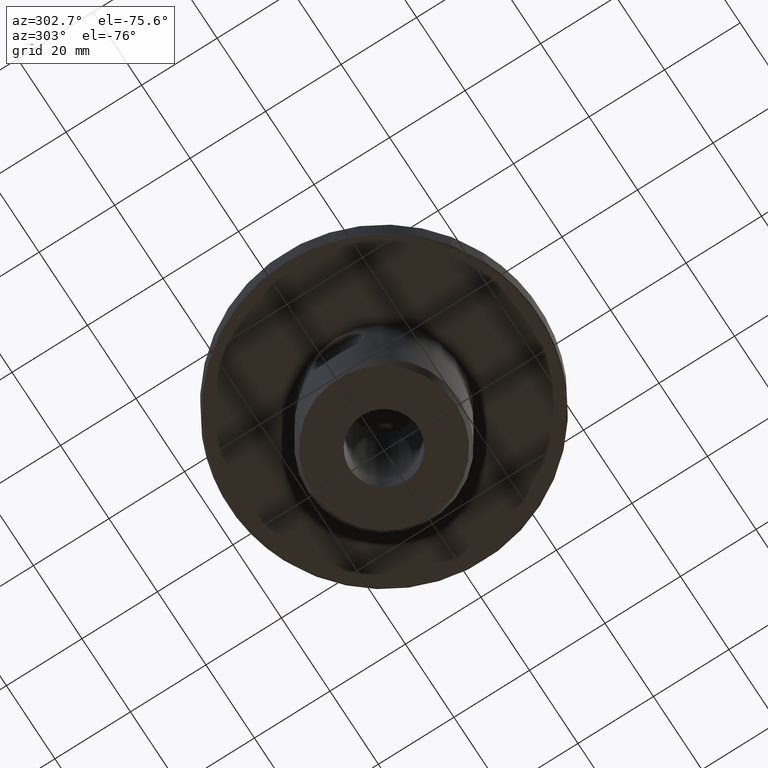
[diagram: clean part render]
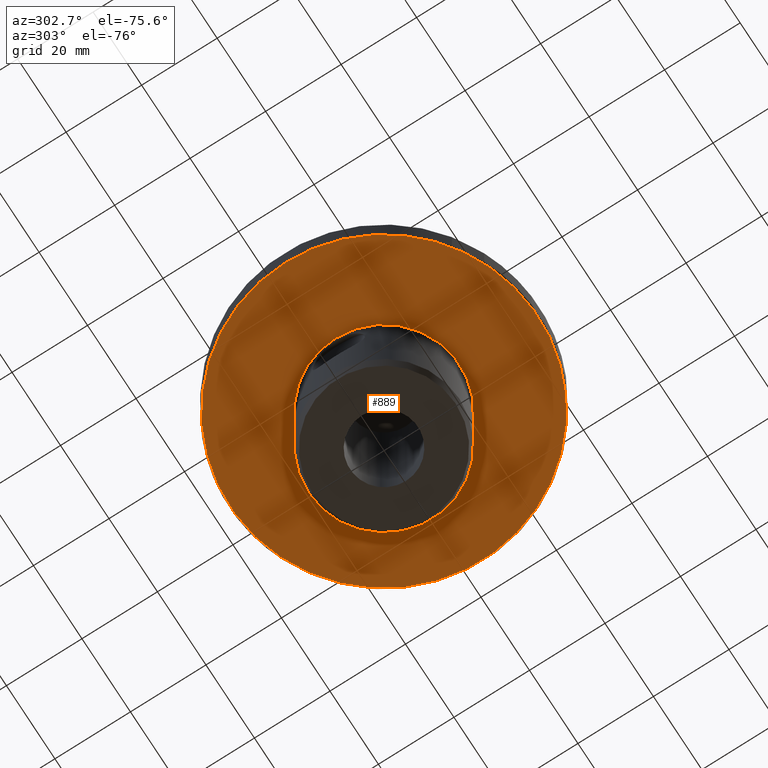
[diagram: same view with one face highlighted and labeled with its STEP entity id]
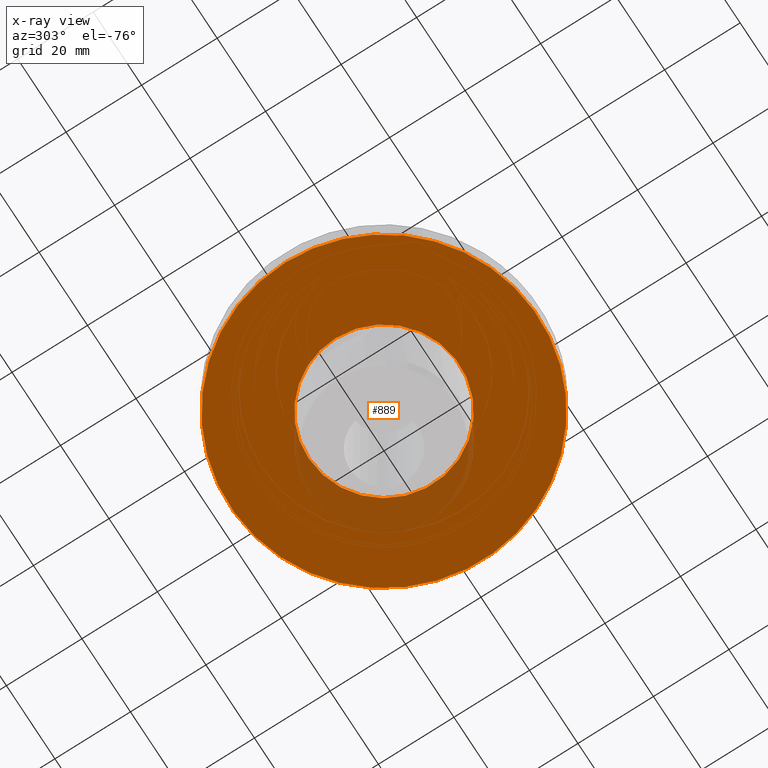
[diagram: x-ray of the same camera — body ghosted, the highlighted face saturated]
A machine part, auxiliary view. The second image highlights one B-rep face of the part: STEP entity #889.
The next image is the same camera in x-ray: the body ghosted, the highlighted face saturated — about 8% of this face is hidden behind the body in this view.
In plain terms, the highlighted planar face has unit normal (0, -0, -1).
Its self-contained STEP definition (entity closure, byte-faithful):
#96=PLANE('',#970);
#112=CIRCLE('',#964,20.);
#116=CIRCLE('',#971,40.7);
#173=ORIENTED_EDGE('',*,*,#412,.F.);
#174=ORIENTED_EDGE('',*,*,#417,.T.);
#412=EDGE_CURVE('',#535,#535,#112,.T.);
#417=EDGE_CURVE('',#540,#540,#116,.T.);
#535=VERTEX_POINT('',#1367);
#540=VERTEX_POINT('',#1398);
#676=EDGE_LOOP('',(#173));
#677=EDGE_LOOP('',(#174));
#771=FACE_BOUND('',#676,.T.);
#772=FACE_BOUND('',#677,.T.);
#889=ADVANCED_FACE('',(#771,#772),#96,.T.);
#964=AXIS2_PLACEMENT_3D('',#1366,#1084,#1085);
#970=AXIS2_PLACEMENT_3D('',#1396,#1096,#1097);
#971=AXIS2_PLACEMENT_3D('',#1397,#1098,#1099);
#1084=DIRECTION('',(1.22461692971323E-16,-7.49836836562635E-33,-1.));
#1085=DIRECTION('',(-1.,0.,-1.22461692971323E-16));
#1096=DIRECTION('',(1.22461692971323E-16,-7.49836836562635E-33,-1.));
#1097=DIRECTION('',(-1.,6.12303176911189E-17,-1.22461692971323E-16));
#1098=DIRECTION('',(-7.30126435159279E-33,-9.52839055771651E-18,-1.));
#1099=DIRECTION('',(-1.,-8.32667268468868E-17,2.89465139560709E-33));
#1366=CARTESIAN_POINT('',(0.,0.,-8.99999999999999));
#1367=CARTESIAN_POINT('',(-20.,0.,-9.));
#1396=CARTESIAN_POINT('',(-30.5,1.86752468957913E-15,-9.));
#1397=CARTESIAN_POINT('',(7.88665112559661E-15,-1.67699673815811E-16,-9.00000000000001));
#1398=CARTESIAN_POINT('',(-40.7,-3.5566554564841E-15,-9.00000000000001));